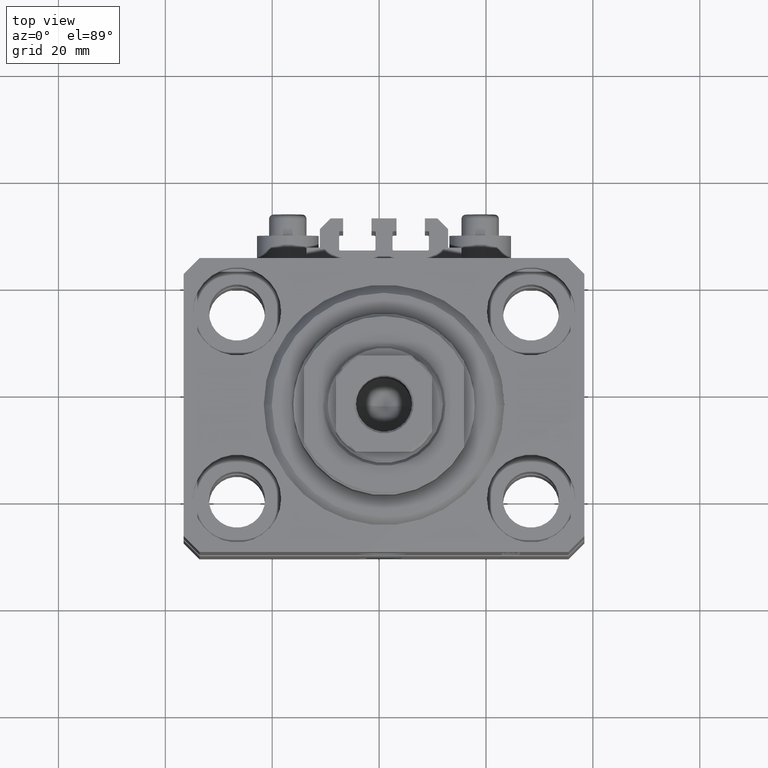
[diagram: clean part render]
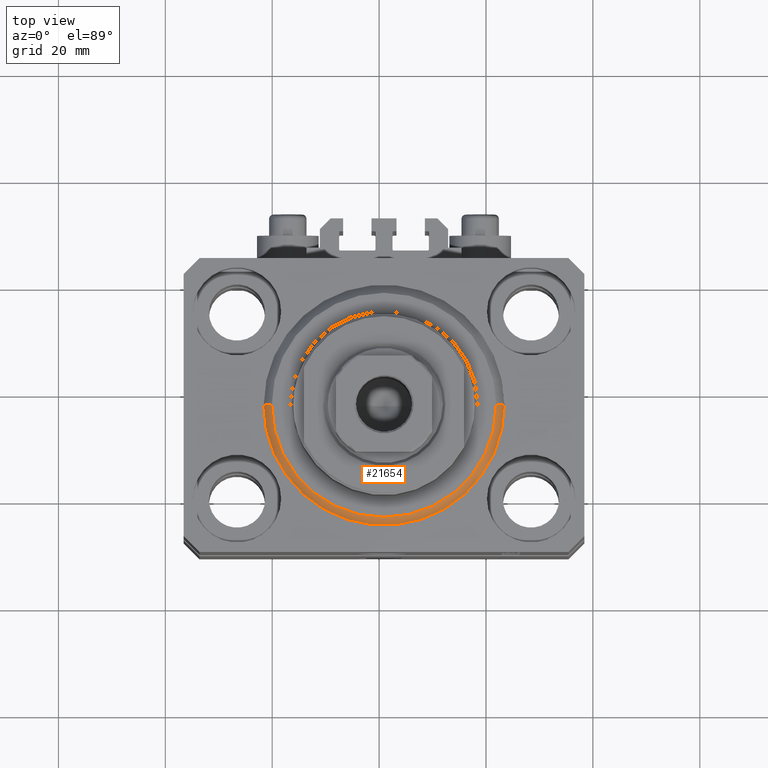
[diagram: same view with one face highlighted and labeled with its STEP entity id]
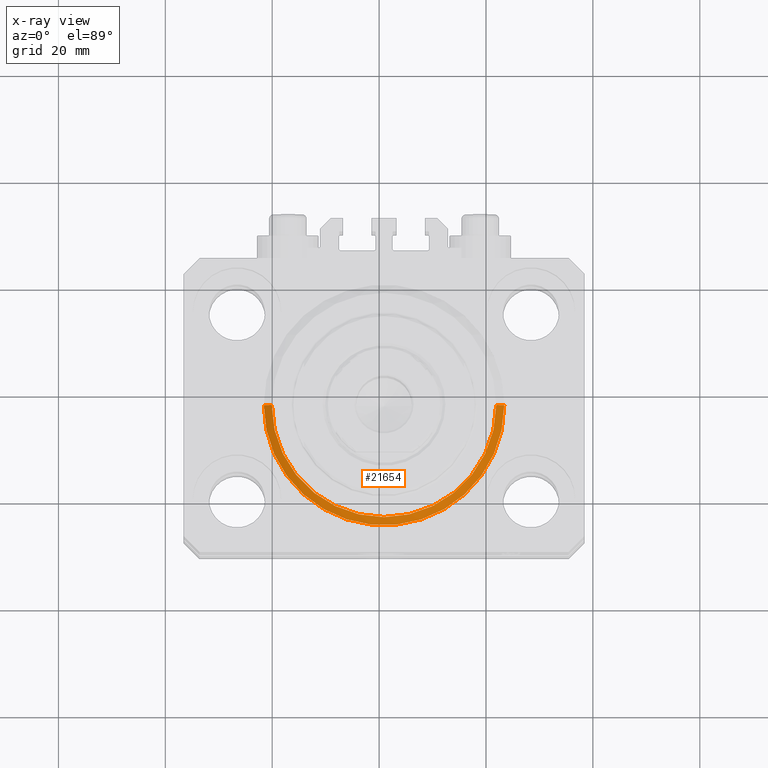
[diagram: x-ray of the same camera — body ghosted, the highlighted face saturated]
A machine part, top view. The second image highlights one B-rep face of the part: STEP entity #21654.
The next image is the same camera in x-ray: the body ghosted, the highlighted face saturated — about 0% of this face is hidden behind the body in this view.
In plain terms, the highlighted conical surface has half-angle 45 deg.
Its self-contained STEP definition (entity closure, byte-faithful):
#455 = EDGE_LOOP ( 'NONE', ( #39731, #46883, #7962, #22511 ) ) ;
#945 = VERTEX_POINT ( 'NONE', #9276 ) ;
#4367 = CARTESIAN_POINT ( 'NONE',  ( 0.000000000000000000, 0.000000000000000000, 1.500000000000039524 ) ) ;
#4370 = EDGE_CURVE ( 'NONE', #40359, #44283, #11195, .T. ) ;
#4604 = FACE_OUTER_BOUND ( 'NONE', #455, .T. ) ;
#5018 = CONICAL_SURFACE ( 'NONE', #29234, 22.50000000000000355, 0.7853981633974517207 ) ;
#7318 = EDGE_CURVE ( 'NONE', #35957, #945, #33967, .T. ) ;
#7962 = ORIENTED_EDGE ( 'NONE', *, *, #30772, .T. ) ;
#9276 = CARTESIAN_POINT ( 'NONE',  ( 22.50000000000000355, 2.755455298081544383E-15, 1.500000000000039524 ) ) ;
#11195 = CIRCLE ( 'NONE', #42961, 20.99999999999995381 ) ;
#15016 = VECTOR ( 'NONE', #18201, 1000.000000000000114 ) ;
#15461 = LINE ( 'NONE', #33924, #22598 ) ;
#15878 = CARTESIAN_POINT ( 'NONE',  ( 20.99999999999995381, 0.000000000000000000, 0.000000000000000000 ) ) ;
#18201 = DIRECTION ( 'NONE',  ( -0.7071067811865500152, 8.659560562354962440E-17, 0.7071067811865451302 ) ) ;
#18851 = CARTESIAN_POINT ( 'NONE',  ( 0.000000000000000000, 0.000000000000000000, 1.500000000000039524 ) ) ;
#19517 = DIRECTION ( 'NONE',  ( 1.000000000000000000, 0.000000000000000000, 0.000000000000000000 ) ) ;
#20568 = CARTESIAN_POINT ( 'NONE',  ( -22.50000000000000355, 0.000000000000000000, 1.500000000000039524 ) ) ;
#21654 = ADVANCED_FACE ( 'NONE', ( #4604 ), #5018, .T. ) ;
#21894 = CARTESIAN_POINT ( 'NONE',  ( 0.000000000000000000, 0.000000000000000000, 0.000000000000000000 ) ) ;
#21988 = CARTESIAN_POINT ( 'NONE',  ( -22.50000000000000355, 2.755455298081545172E-15, 1.500000000000039524 ) ) ;
#22354 = DIRECTION ( 'NONE',  ( -0.000000000000000000, -0.000000000000000000, -1.000000000000000000 ) ) ;
#22511 = ORIENTED_EDGE ( 'NONE', *, *, #7318, .F. ) ;
#22598 = VECTOR ( 'NONE', #43894, 1000.000000000000114 ) ;
#22646 = DIRECTION ( 'NONE',  ( -0.000000000000000000, -0.000000000000000000, 1.000000000000000000 ) ) ;
#22848 = DIRECTION ( 'NONE',  ( -0.000000000000000000, -0.000000000000000000, 1.000000000000000000 ) ) ;
#23115 = DIRECTION ( 'NONE',  ( 1.000000000000000000, 0.000000000000000000, 0.000000000000000000 ) ) ;
#24162 = AXIS2_PLACEMENT_3D ( 'NONE', #18851, #22646, #23115 ) ;
#29234 = AXIS2_PLACEMENT_3D ( 'NONE', #4367, #22848, #19517 ) ;
#30103 = EDGE_CURVE ( 'NONE', #44283, #35957, #33102, .T. ) ;
#30772 = EDGE_CURVE ( 'NONE', #40359, #945, #15461, .T. ) ;
#31203 = CARTESIAN_POINT ( 'NONE',  ( -20.99999999999995381, 2.663606788145490261E-15, 0.000000000000000000 ) ) ;
#33102 = LINE ( 'NONE', #21988, #15016 ) ;
#33924 = CARTESIAN_POINT ( 'NONE',  ( 22.50000000000000355, 0.000000000000000000, 1.500000000000039524 ) ) ;
#33967 = CIRCLE ( 'NONE', #24162, 22.50000000000000355 ) ;
#35957 = VERTEX_POINT ( 'NONE', #20568 ) ;
#36806 = DIRECTION ( 'NONE',  ( 1.000000000000000000, 0.000000000000000000, 0.000000000000000000 ) ) ;
#39731 = ORIENTED_EDGE ( 'NONE', *, *, #30103, .F. ) ;
#40359 = VERTEX_POINT ( 'NONE', #15878 ) ;
#42961 = AXIS2_PLACEMENT_3D ( 'NONE', #21894, #22354, #36806 ) ;
#43894 = DIRECTION ( 'NONE',  ( 0.7071067811865500152, 0.000000000000000000, 0.7071067811865451302 ) ) ;
#44283 = VERTEX_POINT ( 'NONE', #31203 ) ;
#46883 = ORIENTED_EDGE ( 'NONE', *, *, #4370, .F. ) ;